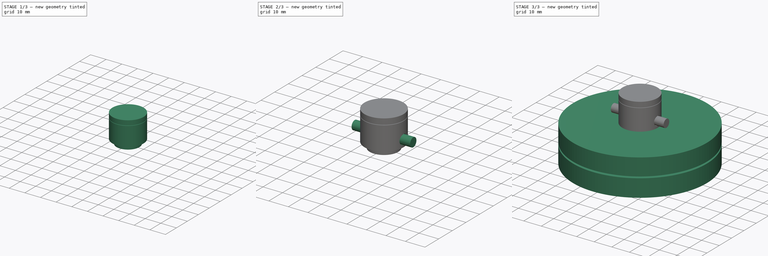
[diagram: build sequence overview — one tinted view per stage of 3, left to right]
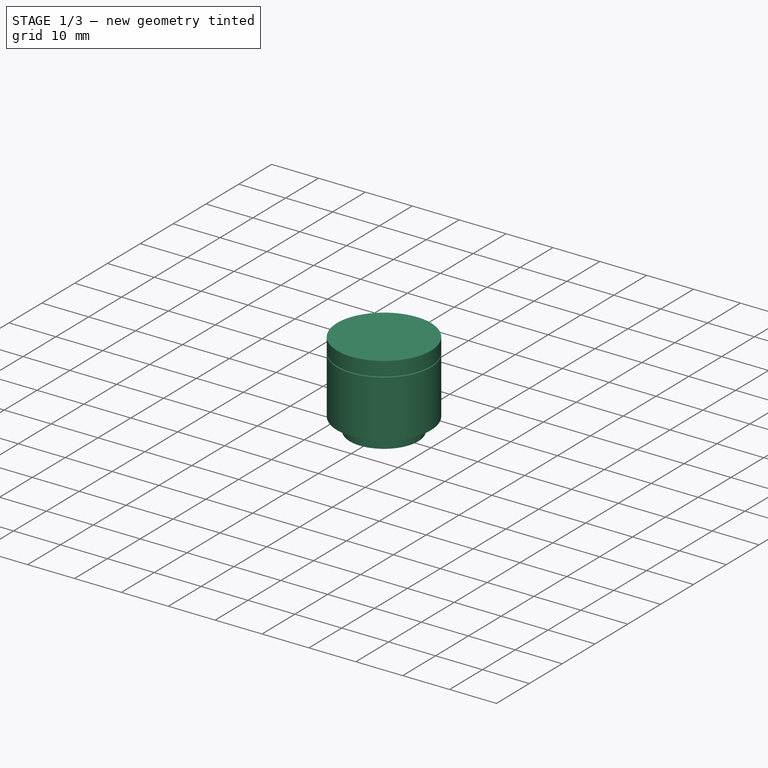
[diagram: stage 1 of 3 — iso view after this stage's code; geometry added in this stage tinted green]
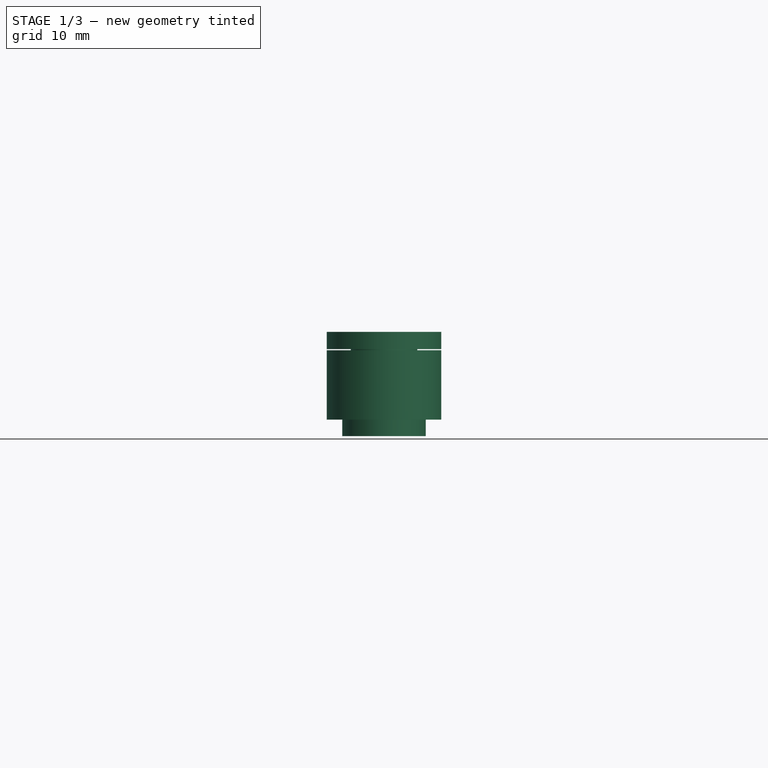
[diagram: stage 1 of 3 — front view after this stage's code; geometry added in this stage tinted green]
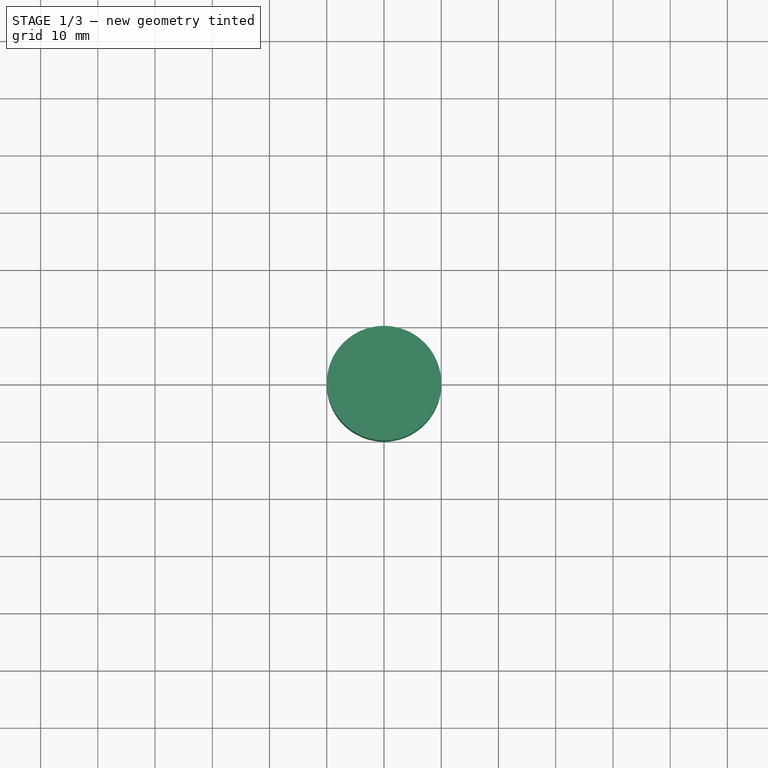
[diagram: stage 1 of 3 — top view after this stage's code; geometry added in this stage tinted green]
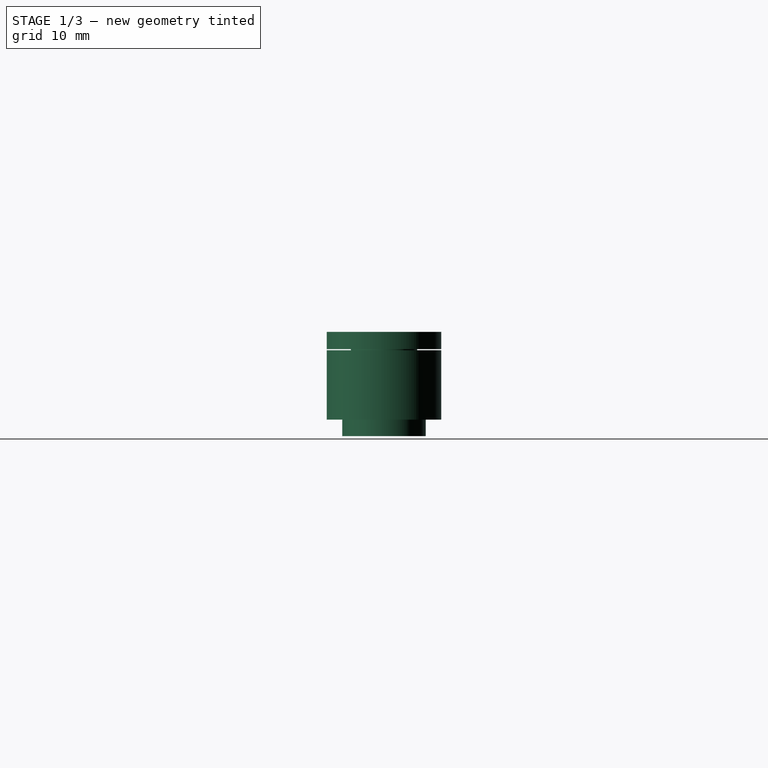
[diagram: stage 1 of 3 — right view after this stage's code; geometry added in this stage tinted green]
FCSTD DOCUMENT  (FreeCAD 0.18R16146 (Git))
Label: 60mm_V3
License: All rights reserved
LicenseURL: http://en.wikipedia.org/wiki/All_rights_reserved
objects: Sketcher::SketchObject×6, PartDesign::Body×5, App::Part×5, PartDesign::Revolution×4, PartDesign::Plane×1, PartDesign::Pad×1, PartDesign::Pocket×1
note: 24 computed .brp shape members not serialized (recipe doc carries the construction recipe); baked Part::Feature solids carry a one-line shape summary decoded from their .brp

FEATURE [PartDesign::Body] Body001
  Group = -> [Sketch001,Revolution001]
  Origin = -> Origin003
  Tip = -> Revolution001
FEATURE [App::Part] Part001  label="Top"
  Group = -> [Body001]
  Origin = -> Origin002
FEATURE [Sketcher::SketchObject] Sketch002
  MapMode = 5
  Placement = pos=(0,0,0) rot=(1,0,0;1.5708rad)
  Support = -> [XZ_Plane005]
  sketch-geometry (6):
    g0: LineSegment StartX=6 StartY=27 StartZ=0 EndX=6 EndY=12 EndZ=0
    g1: LineSegment StartX=6 StartY=12 StartZ=0 EndX=7.3 EndY=12 EndZ=0
    g2: LineSegment StartX=7.3 StartY=12 StartZ=0 EndX=7.3 EndY=14.8664 EndZ=0
    g3: LineSegment StartX=7.3 StartY=14.8664 StartZ=0 EndX=10 EndY=14.8664 EndZ=0
    g4: LineSegment StartX=10 StartY=14.8664 StartZ=0 EndX=10 EndY=27 EndZ=0
    g5: LineSegment StartX=10 StartY=27 StartZ=0 EndX=6 EndY=27 EndZ=0
  constraints (17):
    c: Coincident(g1,g0)
    c: Horizontal(g1)
    c: Coincident(g2,g1)
    c: Vertical(g2)
    c: Coincident(g3,g2)
    c: Horizontal(g3)
    c: Coincident(g4,g3)
    c: Vertical(g4)
    c: Coincident(g5,g4)
    c: Horizontal(g5)
    c: Coincident(g0,g5)
    c: Vertical(g0)
    c: DistanceX(g-1,g1) = 7.3
    c: DistanceY(g-1,g0) = 12
    c: DistanceX(g5,g5) = 4
    c: DistanceX(g-1,g0) = 6
    c: DistanceY(g0,g0) = 15
FEATURE [PartDesign::Revolution] Revolution002
  Angle = 360
  Axis = (0,2e-16,1)
  Base = (0,0,0)
  Placement = pos=(0,0,0) rot=(1,0,0;1.5708rad)
  Profile = -> Sketch002
  ReferenceAxis = -> Sketch002 [V_Axis]
  Reversed = true
FEATURE [PartDesign::Body] Body002
  Group = -> [Sketch002,Revolution002,DatumPlane,Sketch003,Pocket]
  Origin = -> Origin005
  Tip = -> Pocket
FEATURE [App::Part] Part002  label="Neck"
  Group = -> [Body002]
  Origin = -> Origin004
FEATURE [Sketcher::SketchObject] Sketch005
  MapMode = 5
  Placement = pos=(0,0,0) rot=(1,0,0;1.5708rad)
  Support = -> [XZ_Plane009]
  sketch-geometry (6):
    g0: LineSegment StartX=0 StartY=26.2 StartZ=0 EndX=0 EndY=30.2 EndZ=0
    g1: LineSegment StartX=0 StartY=26.2 StartZ=0 EndX=5.8 EndY=26.2 EndZ=0
    g2: LineSegment StartX=5.8 StartY=26.2 StartZ=0 EndX=5.8 EndY=27.2 EndZ=0
    g3: LineSegment StartX=5.8 StartY=27.2 StartZ=0 EndX=10 EndY=27.2 EndZ=0
    g4: LineSegment StartX=10 StartY=27.2 StartZ=0 EndX=10 EndY=30.2 EndZ=0
    g5: LineSegment StartX=10 StartY=30.2 StartZ=0 EndX=0 EndY=30.2 EndZ=0
  constraints (18):
    c: PointOnObject(g0,g-2)
    c: Vertical(g0)
    c: Coincident(g1,g0)
    c: Horizontal(g1)
    c: Coincident(g2,g1)
    c: Coincident(g3,g2)
    c: Horizontal(g3)
    c: Coincident(g4,g3)
    c: Coincident(g5,g4)
    c: Horizontal(g5)
    c: Vertical(g2)
    c: Vertical(g4)
    c: Coincident(g0,g5)
    c: DistanceX(g1,g1) = 5.8
    c: DistanceY(g2,g2) = 1
    c: DistanceY(g4,g4) = 3
    c: DistanceX(g5,g5) = 10
    c: DistanceY(g-1,g0) = 26.2
FEATURE [PartDesign::Revolution] Revolution003
  Angle = 360
  Axis = (0,2e-16,1)
  Base = (0,0,0)
  Placement = pos=(0,0,0) rot=(1,0,0;1.5708rad)
  Profile = -> Sketch005
  ReferenceAxis = -> Sketch005 [V_Axis]
  Reversed = true
FEATURE [PartDesign::Body] Body004
  Group = -> [Sketch005,Revolution003]
  Origin = -> Origin009
  Tip = -> Revolution003
FEATURE [App::Part] Part004  label="Cap"
  Group = -> [Body004]
  Origin = -> Origin008
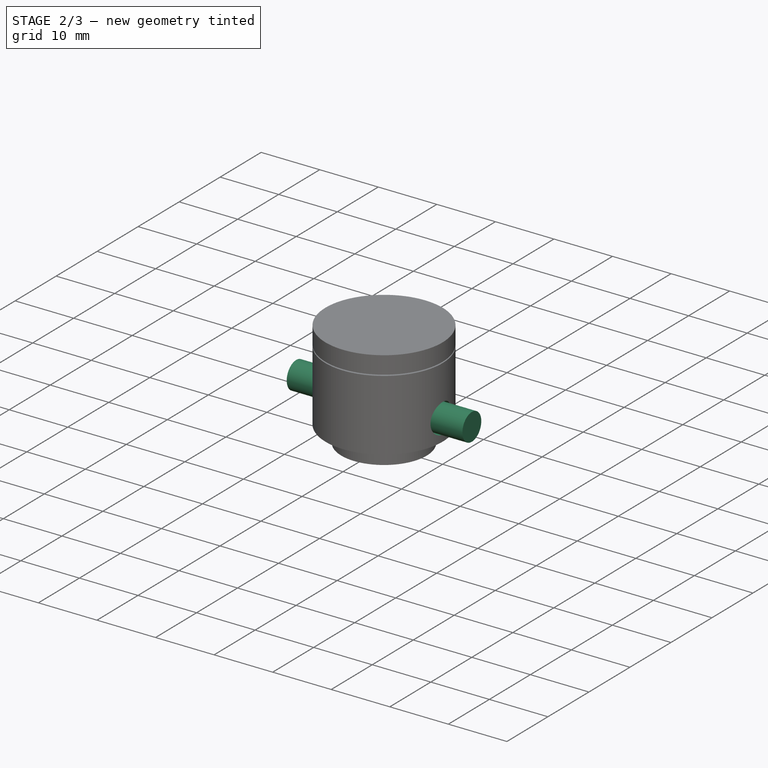
[diagram: stage 2 of 3 — iso view after this stage's code; geometry added in this stage tinted green]
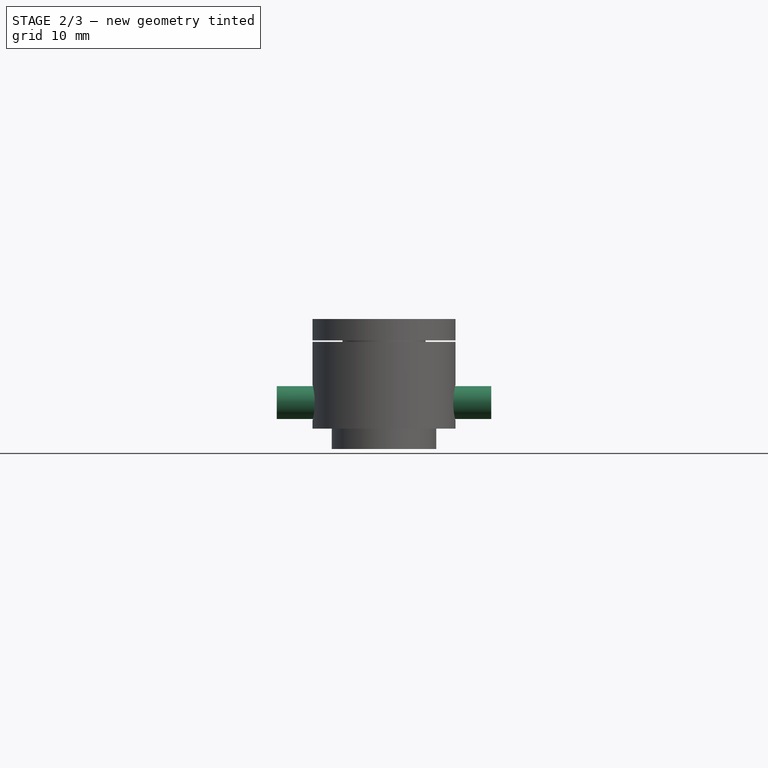
[diagram: stage 2 of 3 — front view after this stage's code; geometry added in this stage tinted green]
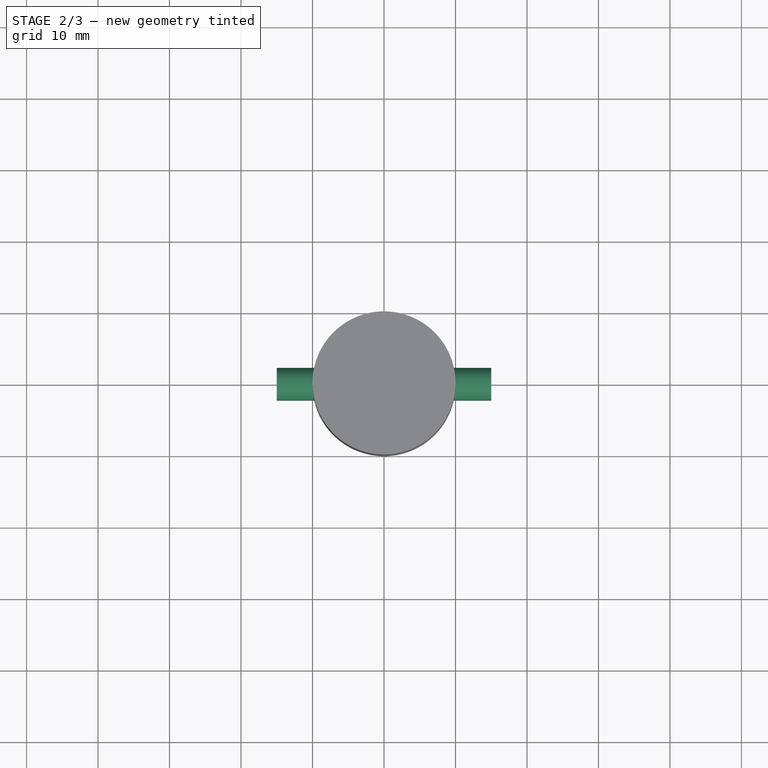
[diagram: stage 2 of 3 — top view after this stage's code; geometry added in this stage tinted green]
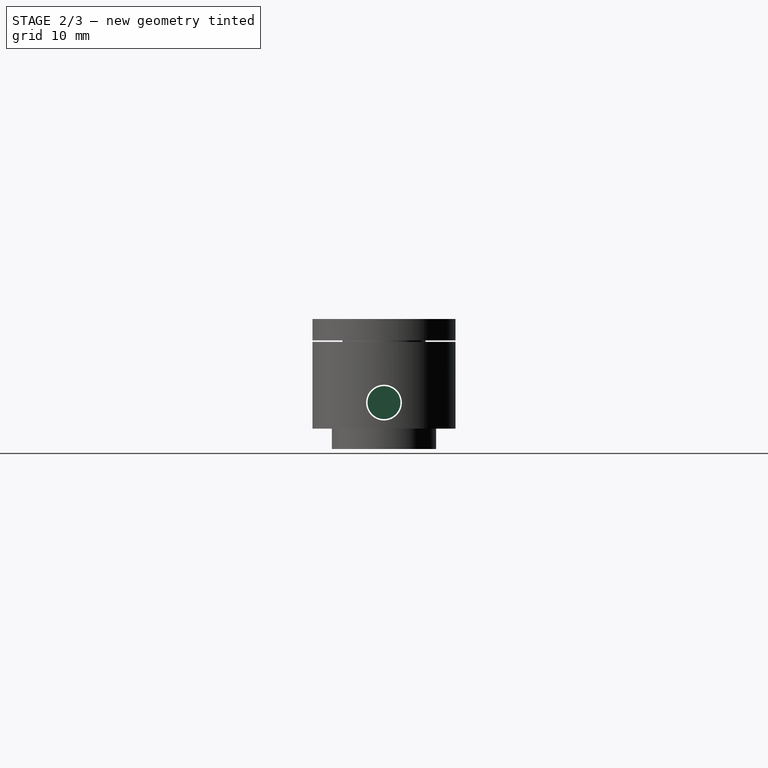
[diagram: stage 2 of 3 — right view after this stage's code; geometry added in this stage tinted green]
FEATURE [PartDesign::Plane] DatumPlane
  Length = 42.4406
  MapMode = 49
  Placement = pos=(10,6e-15,27) rot=(0,1,0;1.5708rad)
  ResizeMode = 0
  Support = -> [Revolution002]
  Width = 25.4406
FEATURE [Sketcher::SketchObject] Sketch003
  MapMode = 5
  Placement = pos=(10,6e-15,27) rot=(0,1,0;1.5708rad)
  Support = -> [DatumPlane]
  sketch-geometry (1):
    g0: Circle CenterX=8.5 CenterY=0 CenterZ=0 NormalX=0 NormalY=0 NormalZ=1 AngleXU=0 Radius=2.5
  constraints (3):
    c: PointOnObject(g0,g-1)
    c: Radius(g0) = 2.5
    c: DistanceX(g-1,g0) = 8.5
FEATURE [Sketcher::SketchObject] Sketch004
  MapMode = 5
  Placement = pos=(0,0,0) rot=(0.57735,0.57735,0.57735;2.0944rad)
  Support = -> [YZ_Plane007]
  sketch-geometry (1):
    g0: Circle CenterX=0 CenterY=18.5 CenterZ=0 NormalX=0 NormalY=0 NormalZ=1 AngleXU=0 Radius=2.3
  constraints (3):
    c: PointOnObject(g0,g-2)
    c: Radius(g0) = 2.3
    c: DistanceY(g-1,g0) = 18.5
FEATURE [PartDesign::Pad] Pad
  Length = 30
  Length2 = 100
  Midplane = true
  Placement = pos=(0,0,0) rot=(0.57735,0.57735,0.57735;2.0944rad)
  Profile = -> Sketch004
  Type = 0
FEATURE [PartDesign::Body] Body003
  Group = -> [Sketch004,Pad]
  Origin = -> Origin007
  Tip = -> Pad
FEATURE [App::Part] Part003  label="Pin"
  Group = -> [Body003]
  Origin = -> Origin006
FEATURE [PartDesign::Pocket] Pocket
  BaseFeature = -> Revolution002
  Length = 50
  Length2 = 100
  Placement = pos=(0,0,0) rot=(1,0,0;1.5708rad)
  Profile = -> Sketch003
  Type = 0
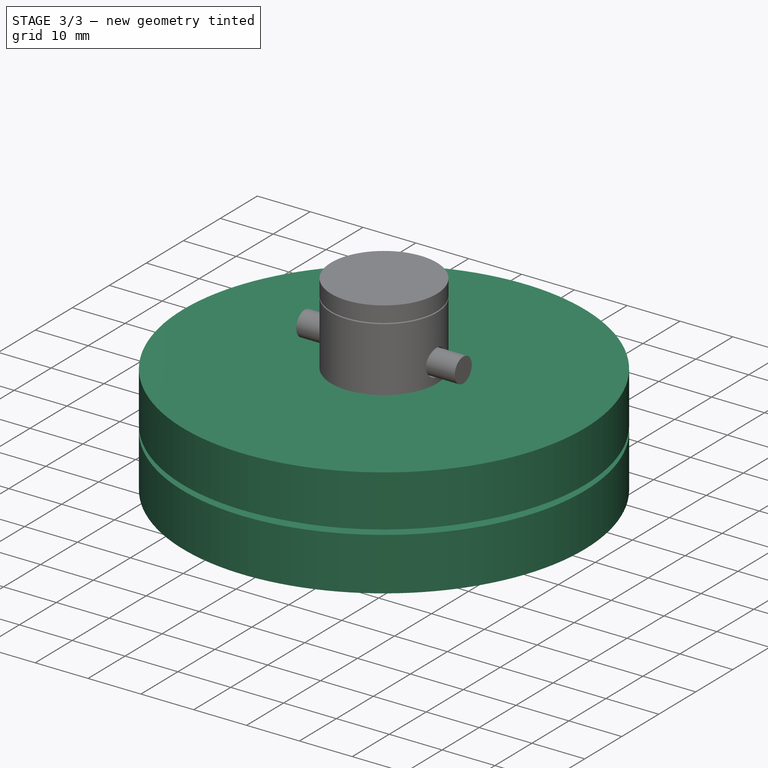
[diagram: stage 3 of 3 — iso view after this stage's code; geometry added in this stage tinted green]
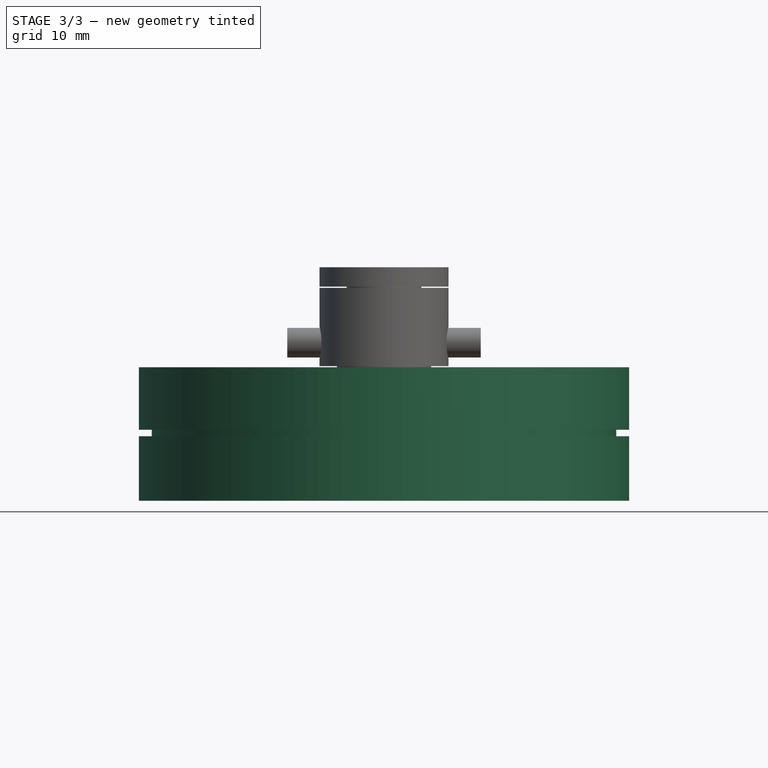
[diagram: stage 3 of 3 — front view after this stage's code; geometry added in this stage tinted green]
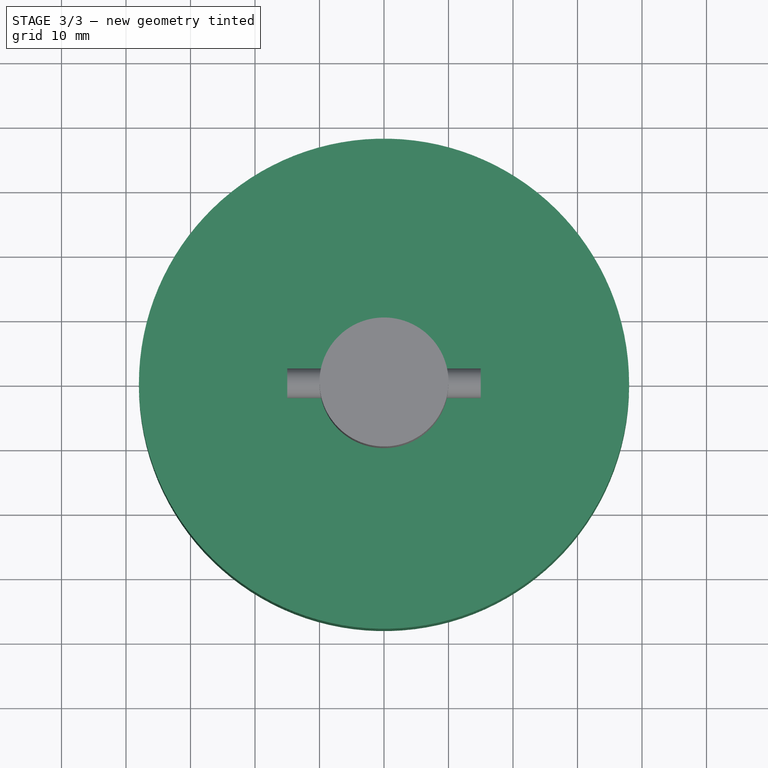
[diagram: stage 3 of 3 — top view after this stage's code; geometry added in this stage tinted green]
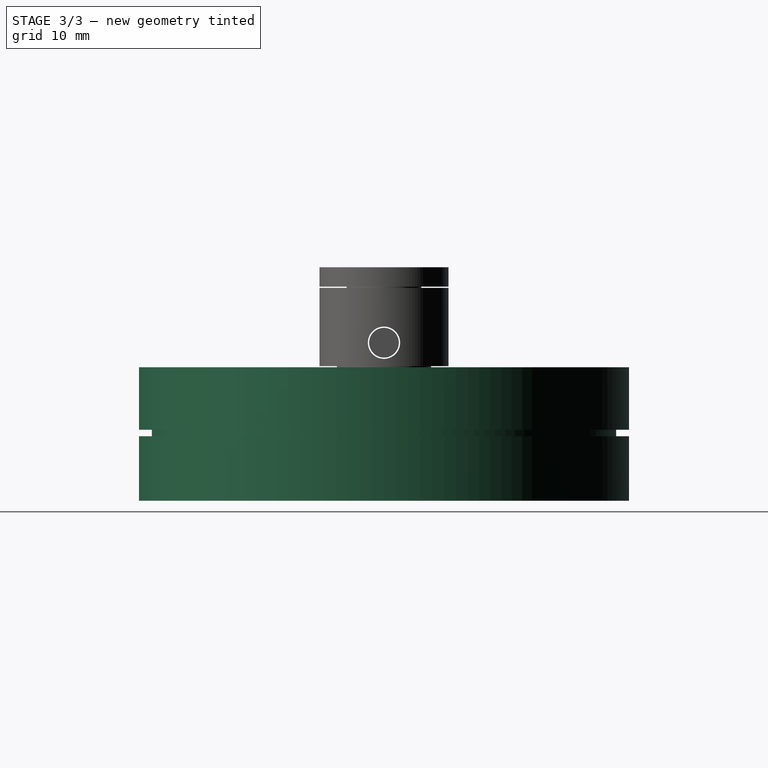
[diagram: stage 3 of 3 — right view after this stage's code; geometry added in this stage tinted green]
FEATURE [Sketcher::SketchObject] Sketch
  MapMode = 5
  Placement = pos=(0,0,0) rot=(1,0,0;1.5708rad)
  Support = -> [XZ_Plane001]
  sketch-geometry (7):
    g0: ArcOfCircle CenterX=0 CenterY=-68.7386 CenterZ=0 NormalX=0 NormalY=0 NormalZ=1 AngleXU=0 Radius=75 StartAngle=1.15928 EndAngle=1.5708
    g1: LineSegment StartX=0 StartY=6.26136 StartZ=0 EndX=0 EndY=-6 EndZ=0
    g2: LineSegment StartX=0 StartY=-6 StartZ=0 EndX=38 EndY=-6 EndZ=0
    g3: LineSegment StartX=38 StartY=-6 StartZ=0 EndX=38 EndY=4 EndZ=0
    g4: LineSegment StartX=30 StartY=0 StartZ=0 EndX=33 EndY=0 EndZ=0
    g5: LineSegment StartX=33 StartY=0 StartZ=0 EndX=33 EndY=4 EndZ=0
    g6: LineSegment StartX=33 StartY=4 StartZ=0 EndX=38 EndY=4 EndZ=0
  constraints (22):
    c: PointOnObject(g0,g-2)
    c: PointOnObject(g0,g-1)
    c: PointOnObject(g0,g-2)
    c: DistanceX(g-1,g0) = 30
    c: Radius(g0) = 75
    c: Coincident(g1,g0)
    c: PointOnObject(g1,g-2)
    c: Coincident(g2,g1)
    c: Horizontal(g2)
    c: Coincident(g3,g2)
    c: Vertical(g3)
    c: Coincident(g4,g0)
    c: PointOnObject(g4,g-1)
    c: Coincident(g5,g4)
    c: Vertical(g5)
    c: Coincident(g6,g5)
    c: Coincident(g6,g3)
    c: Horizontal(g6)
    c: DistanceX(g4,g4) = 3
    c: DistanceY(g5,g5) = 4
    c: DistanceX(g6,g6) = 5
    c: DistanceY(g3,g3) = 10
FEATURE [PartDesign::Revolution] Revolution
  Angle = 360
  Axis = (0,2e-16,1)
  Base = (0,0,0)
  Placement = pos=(0,0,0) rot=(1,0,0;1.5708rad)
  Profile = -> Sketch
  ReferenceAxis = -> Sketch [V_Axis]
  Reversed = true
FEATURE [PartDesign::Body] Body
  Group = -> [Sketch,Revolution]
  Origin = -> Origin001
  Tip = -> Revolution
FEATURE [App::Part] Part  label="Bottom"
  Group = -> [Body]
  Origin = -> Origin
FEATURE [Sketcher::SketchObject] Sketch001
  MapMode = 5
  Placement = pos=(0,0,0) rot=(1,0,0;1.5708rad)
  Support = -> [XZ_Plane003]
  sketch-geometry (8):
    g0: ArcOfCircle CenterX=0 CenterY=-37.738 CenterZ=0 NormalX=0 NormalY=0 NormalZ=1 AngleXU=0 Radius=50 StartAngle=0.85529 EndAngle=1.42023
    g1: LineSegment StartX=32.8 StartY=0 StartZ=0 EndX=32.8 EndY=4 EndZ=0
    g2: LineSegment StartX=7.5 StartY=11.6963 StartZ=0 EndX=7.5 EndY=14.6963 EndZ=0
    g3: LineSegment StartX=7.5 StartY=14.6963 StartZ=0 EndX=38 EndY=14.6963 EndZ=0
    g4: LineSegment StartX=38 StartY=14.6963 StartZ=0 EndX=38 EndY=5 EndZ=0
    g5: LineSegment StartX=32.8 StartY=4 StartZ=0 EndX=36 EndY=4 EndZ=0
    g6: LineSegment StartX=36 StartY=4 StartZ=0 EndX=36 EndY=5 EndZ=0
    g7: LineSegment StartX=36 StartY=5 StartZ=0 EndX=38 EndY=5 EndZ=0
  constraints (25):
    c: PointOnObject(g0,g-2)
    c: PointOnObject(g0,g-1)
    c: DistanceX(g-1,g0) = 32.8
    c: Radius(g0) = 50
    c: DistanceX(g-1,g0) = 7.5
    c: Coincident(g1,g0)
    c: Vertical(g1)
    c: DistanceY(g1,g1) = 4
    c: DistanceX(g1,g4) = 5.2
    c: Coincident(g2,g0)
    c: Vertical(g2)
    c: Coincident(g3,g2)
    c: Horizontal(g3)
    c: Coincident(g4,g3)
    c: Vertical(g4)
    c: DistanceY(g2,g2) = 3
    c: Coincident(g5,g1)
    c: Horizontal(g5)
    c: Coincident(g6,g5)
    c: Vertical(g6)
    c: Coincident(g7,g6)
    c: Horizontal(g7)
    c: Coincident(g4,g7)
    c: DistanceY(g6,g6) = 1
    c: DistanceX(g7,g7) = 2
FEATURE [PartDesign::Revolution] Revolution001
  Angle = 360
  Axis = (0,-2e-16,1)
  Base = (0,0,0)
  Placement = pos=(0,0,0) rot=(1,0,0;1.5708rad)
  Profile = -> Sketch001
  ReferenceAxis = -> Sketch001 [V_Axis]
  Reversed = true
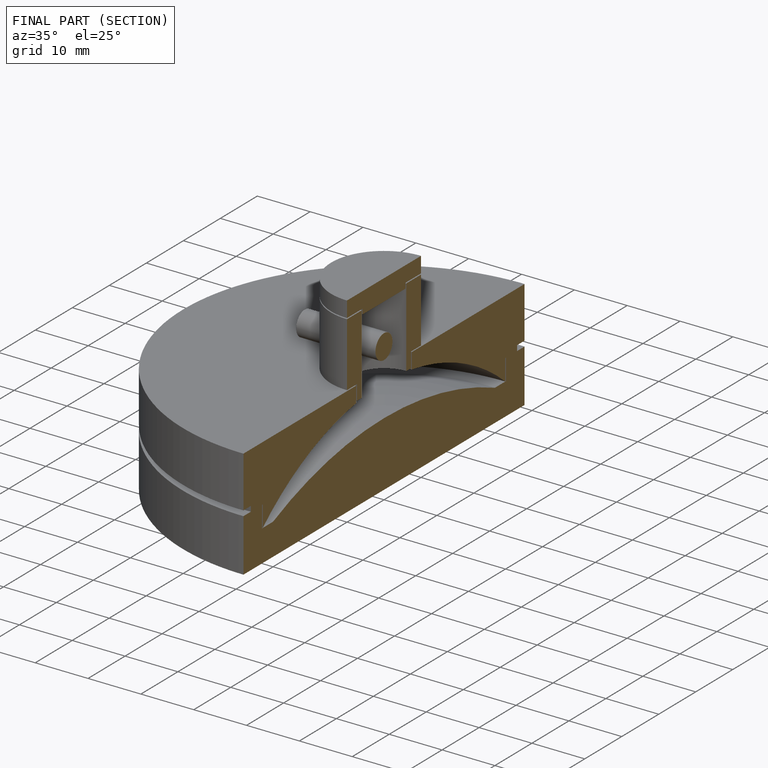
[diagram: finished part — half-section view (interior)]
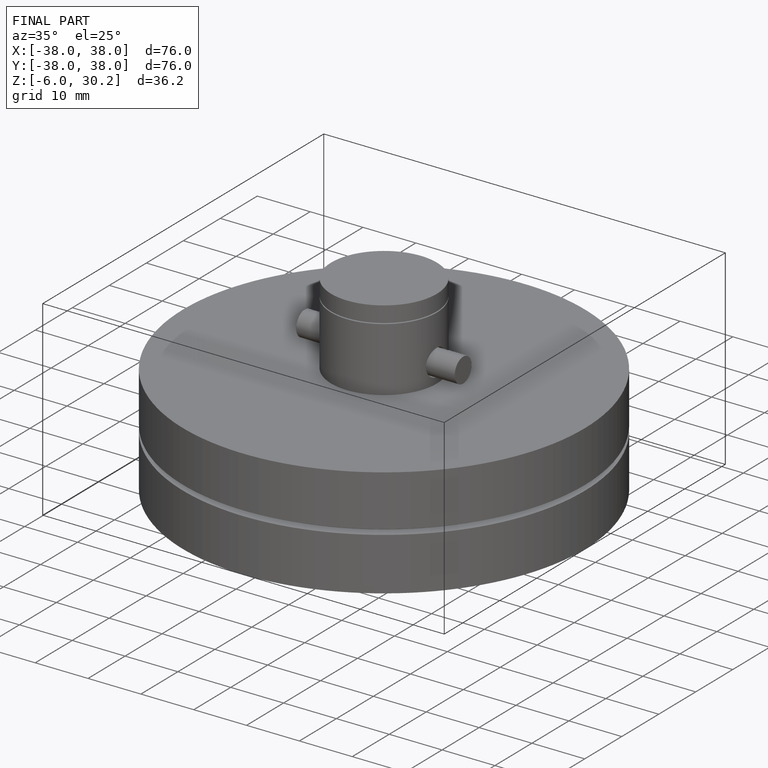
[diagram: finished part — iso view with bounding-box wireframe]
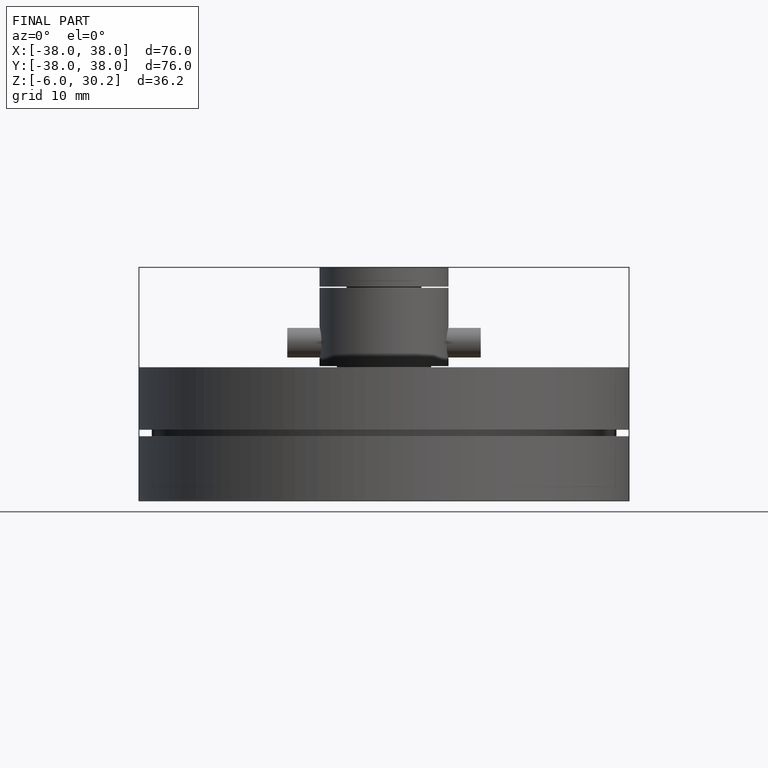
[diagram: finished part — front view with bounding-box wireframe]
